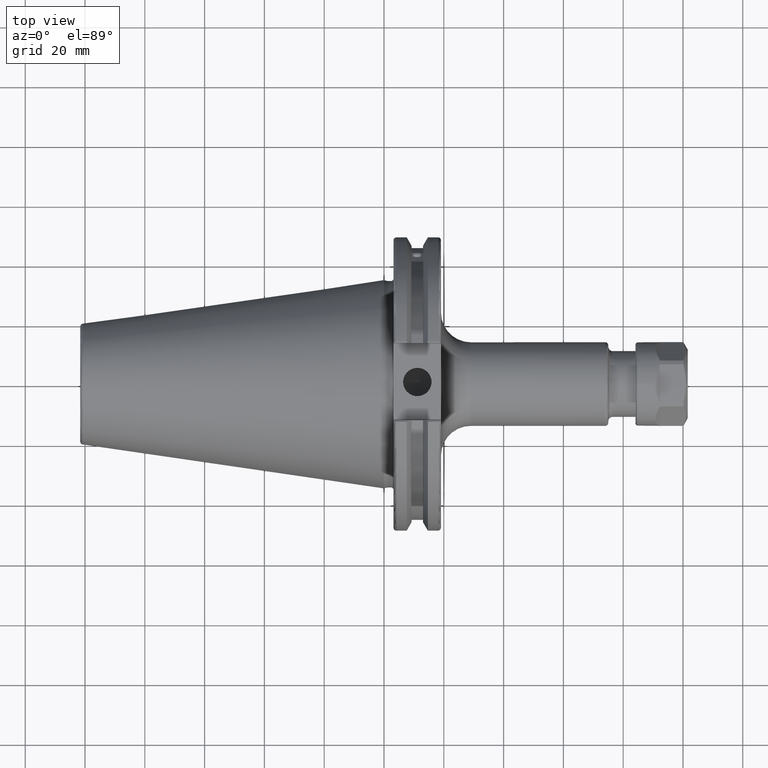
[diagram: clean part render]
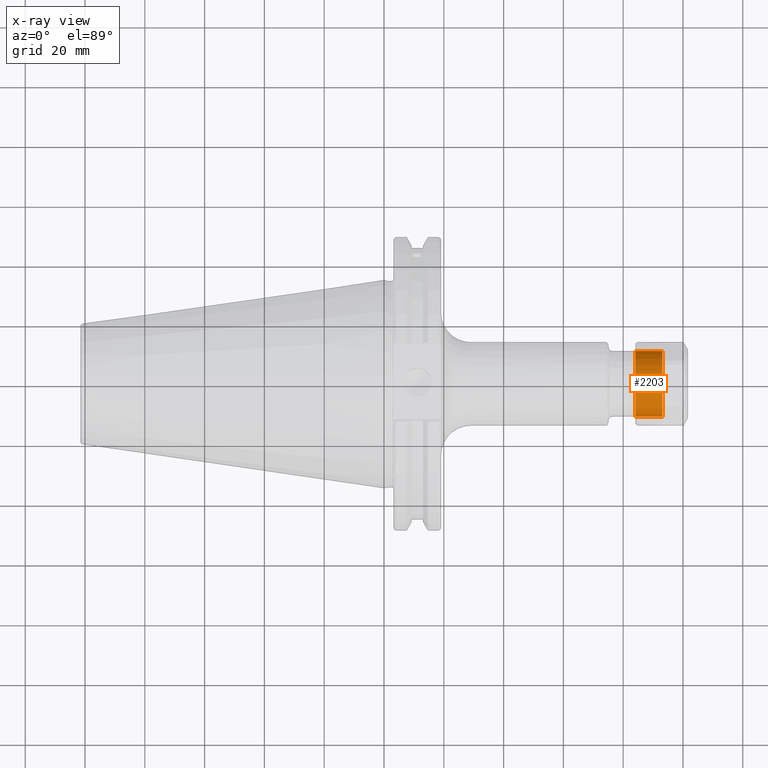
[diagram: x-ray — body ghosted, one internal face saturated and labeled with its STEP entity id]
A machine part, top view, then the same camera in x-ray: the body is ghosted and one INTERNAL B-rep face — a face not visible from any outside direction — is saturated and labeled: STEP entity #2203.
In plain terms, the highlighted cylindrical surface (bore or boss wall) has radius 11 mm, axis along (-1, 0, 0).
Its self-contained STEP definition (entity closure, byte-faithful):
#181=CYLINDRICAL_SURFACE('',#2521,11.);
#386=FACE_OUTER_BOUND('',#535,.T.);
#535=EDGE_LOOP('',(#2057,#2058,#2059,#2060));
#667=LINE('',#4289,#799);
#799=VECTOR('',#3149,11.);
#910=CIRCLE('',#2522,11.);
#911=CIRCLE('',#2523,11.);
#1119=VERTEX_POINT('',#4286);
#1120=VERTEX_POINT('',#4288);
#1432=EDGE_CURVE('',#1119,#1119,#910,.T.);
#1433=EDGE_CURVE('',#1119,#1120,#667,.T.);
#1434=EDGE_CURVE('',#1120,#1120,#911,.T.);
#2057=ORIENTED_EDGE('',*,*,#1432,.F.);
#2058=ORIENTED_EDGE('',*,*,#1433,.T.);
#2059=ORIENTED_EDGE('',*,*,#1434,.F.);
#2060=ORIENTED_EDGE('',*,*,#1433,.F.);
#2203=ADVANCED_FACE('',(#386),#181,.T.);
#2521=AXIS2_PLACEMENT_3D('',#4285,#3145,#3146);
#2522=AXIS2_PLACEMENT_3D('',#4287,#3147,#3148);
#2523=AXIS2_PLACEMENT_3D('',#4290,#3150,#3151);
#3145=DIRECTION('center_axis',(-1.,0.,0.));
#3146=DIRECTION('ref_axis',(0.,-1.,0.));
#3147=DIRECTION('center_axis',(-1.,0.,0.));
#3148=DIRECTION('ref_axis',(0.,-1.,0.));
#3149=DIRECTION('',(1.,0.,0.));
#3150=DIRECTION('center_axis',(1.,0.,0.));
#3151=DIRECTION('ref_axis',(0.,1.,0.));
#4285=CARTESIAN_POINT('Origin',(-8.75,0.,0.));
#4286=CARTESIAN_POINT('',(-8.75,11.,0.));
#4287=CARTESIAN_POINT('Origin',(-8.75,0.,0.));
#4288=CARTESIAN_POINT('',(0.25,11.,0.));
#4289=CARTESIAN_POINT('',(-8.75,11.,-1.34711147906209E-15));
#4290=CARTESIAN_POINT('Origin',(0.25,0.,0.));